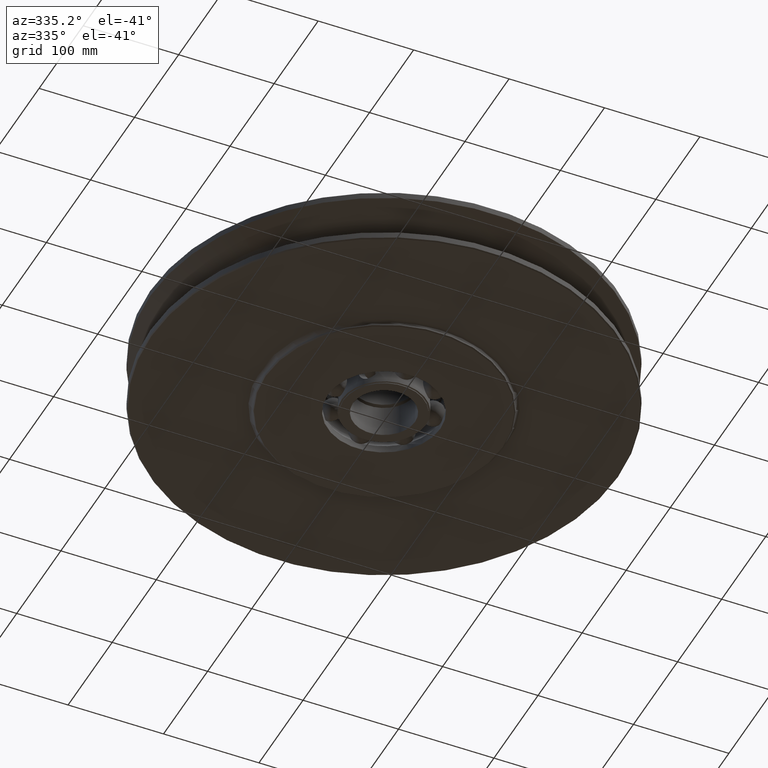
[diagram: clean part render]
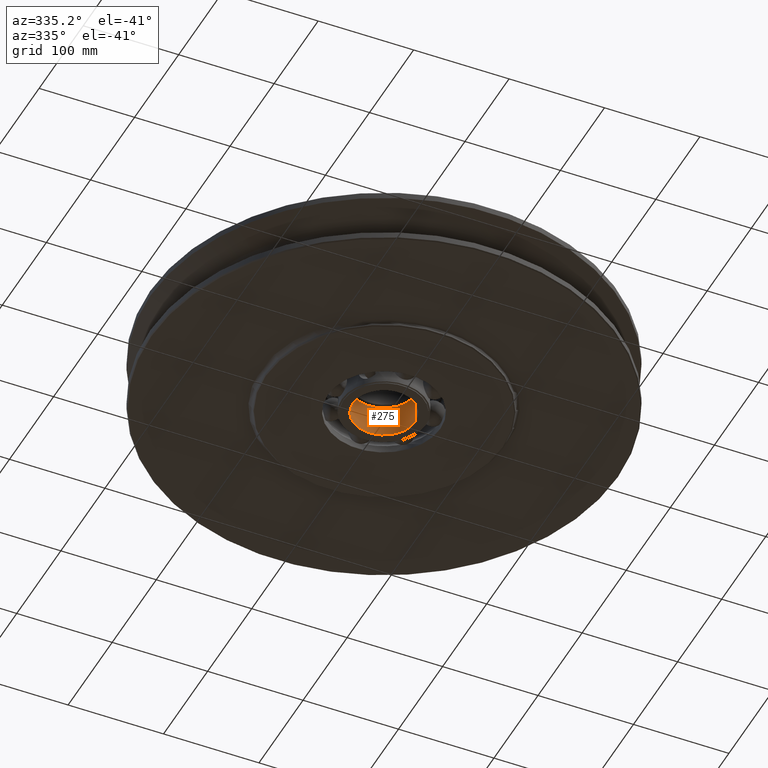
[diagram: same view with one face highlighted and labeled with its STEP entity id]
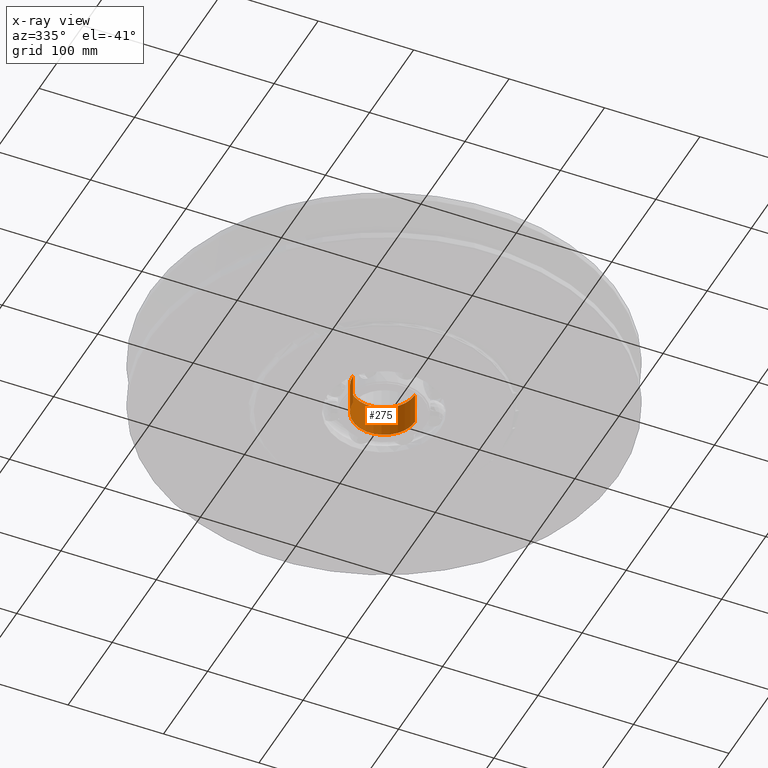
[diagram: x-ray of the same camera — body ghosted, the highlighted face saturated]
A machine part, auxiliary view. The second image highlights one B-rep face of the part: STEP entity #275.
The next image is the same camera in x-ray: the body ghosted, the highlighted face saturated — about 0% of this face is hidden behind the body in this view.
In plain terms, the highlighted cylindrical surface (edge-blend (fillet) strip) has radius 32.5 mm, axis along (0, 0, -1).
Its self-contained STEP definition (entity closure, byte-faithful):
#275=ADVANCED_FACE('',(#615),#616,.F.);
#615=FACE_OUTER_BOUND('',#1025,.T.);
#616=CYLINDRICAL_SURFACE('',#1026,32.5);
#1025=EDGE_LOOP('',(#1883,#1884,#1885,#1886));
#1026=AXIS2_PLACEMENT_3D('',#1887,#1888,#1889);
#1883=ORIENTED_EDGE('',*,*,#2933,.T.);
#1884=ORIENTED_EDGE('',*,*,#2958,.F.);
#1885=ORIENTED_EDGE('',*,*,#2935,.T.);
#1886=ORIENTED_EDGE('',*,*,#2951,.F.);
#1887=CARTESIAN_POINT('',(0.0,0.0,-18.5));
#1888=DIRECTION('',(0.0,0.0,-1.0));
#1889=DIRECTION('',(1.0,0.0,0.0));
#2933=EDGE_CURVE('',#3722,#3723,#3724,.T.);
#2935=EDGE_CURVE('',#3727,#3725,#3728,.T.);
#2951=EDGE_CURVE('',#3722,#3725,#3752,.T.);
#2958=EDGE_CURVE('',#3727,#3723,#3759,.T.);
#3722=VERTEX_POINT('',#7827);
#3723=VERTEX_POINT('',#7828);
#3724=LINE('',#7829,#7830);
#3725=VERTEX_POINT('',#7831);
#3727=VERTEX_POINT('',#7833);
#3728=LINE('',#7834,#7835);
#3752=CIRCLE('',#7863,32.5);
#3759=CIRCLE('',#7870,32.5);
#7827=CARTESIAN_POINT('',(32.5,0.0,-36.0));
#7828=CARTESIAN_POINT('',(32.5,0.0,-2.0));
#7829=CARTESIAN_POINT('',(32.5,3.9801020972289E-015,-18.5));
#7830=VECTOR('',#9596,1.0);
#7831=CARTESIAN_POINT('',(-32.5,-3.9801020972289E-015,-36.0));
#7833=CARTESIAN_POINT('',(-32.5,-3.9801020972289E-015,-2.0));
#7834=CARTESIAN_POINT('',(-32.5,-3.9801020972289E-015,-18.5));
#7835=VECTOR('',#9600,1.0);
#7863=AXIS2_PLACEMENT_3D('',#9626,#9627,#9628);
#7870=AXIS2_PLACEMENT_3D('',#9638,#9639,#9640);
#9596=DIRECTION('',(-0.0,-0.0,1.0));
#9600=DIRECTION('',(-0.0,-0.0,-1.0));
#9626=CARTESIAN_POINT('',(0.0,0.0,-36.0));
#9627=DIRECTION('',(0.0,-0.0,1.0));
#9628=DIRECTION('',(1.0,0.0,0.0));
#9638=CARTESIAN_POINT('',(0.0,0.0,-2.0));
#9639=DIRECTION('',(0.0,0.0,-1.0));
#9640=DIRECTION('',(1.0,0.0,0.0));